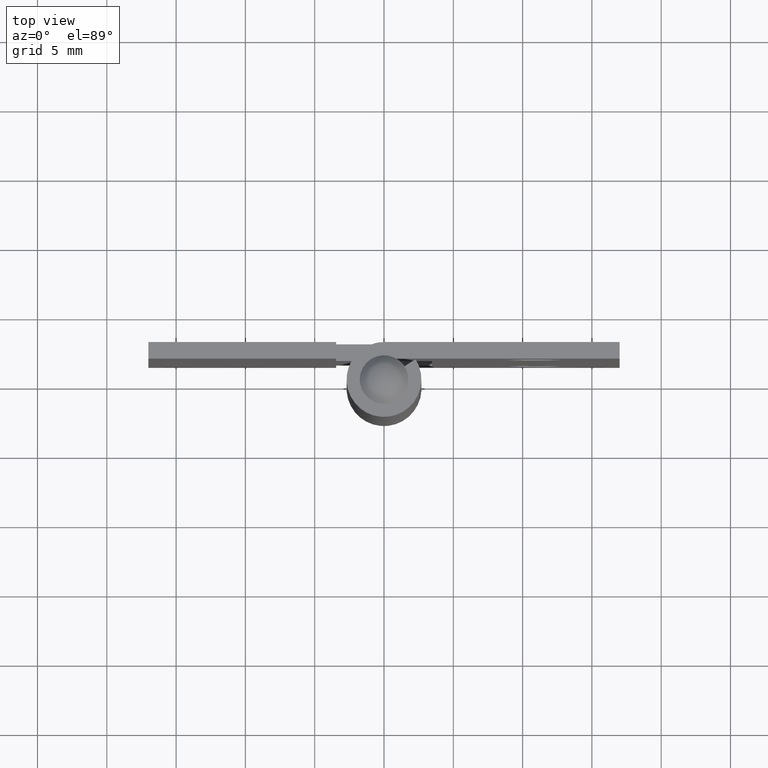
[diagram: clean part render]
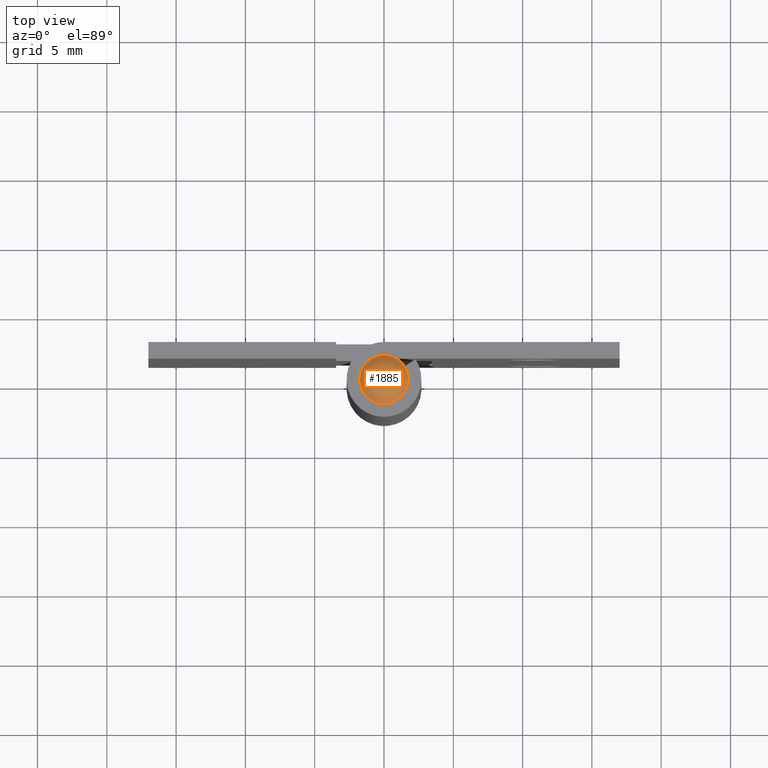
[diagram: same view with one face highlighted and labeled with its STEP entity id]
A machine part, top view. The second image highlights one B-rep face of the part: STEP entity #1885.
In plain terms, the highlighted face is a freeform B-spline surface patch.
Its self-contained STEP definition (entity closure, byte-faithful):
#1802=CARTESIAN_POINT('',(-1.750000035710800,0.0,38.0));
#1803=VERTEX_POINT('',#1802);
#1804=CARTESIAN_POINT('',(1.750000035710800,0.0,38.0));
#1805=VERTEX_POINT('',#1804);
#1806=CARTESIAN_POINT('',(-1.750000035710800,0.0,38.0));
#1807=CARTESIAN_POINT('',(-1.750082475741220,0.171815178228469,38.000000000000028));
#1808=CARTESIAN_POINT('',(-1.712788290754108,0.422309505559623,38.000000000000050));
#1809=CARTESIAN_POINT('',(-1.578112421369717,0.777942897246624,37.999999999999893));
#1810=CARTESIAN_POINT('',(-1.426300229734547,1.031223809570243,38.000000000000092));
#1811=CARTESIAN_POINT('',(-1.198061948900788,1.289344084527976,37.999999999999943));
#1812=CARTESIAN_POINT('',(-0.948233119493173,1.484305844456920,38.000000000000057));
#1813=CARTESIAN_POINT('',(-0.627332735465277,1.645839022843602,37.999999999999922));
#1814=CARTESIAN_POINT('',(-0.266386666666106,1.745738692009917,38.000000000000242));
#1815=CARTESIAN_POINT('',(0.144450607321858,1.760887510521150,37.999999999999467));
#1816=CARTESIAN_POINT('',(0.525684973458513,1.682592288419368,38.000000000000853));
#1817=CARTESIAN_POINT('',(0.861772440750092,1.536064901481687,37.999999999999282));
#1818=CARTESIAN_POINT('',(1.186865123770174,1.310139820349140,38.000000000000639));
#1819=CARTESIAN_POINT('',(1.438937227711617,1.021538621614823,37.999999999998700));
#1820=CARTESIAN_POINT('',(1.606664228687412,0.712171195049799,38.000000000001343));
#1821=CARTESIAN_POINT('',(1.718432553645478,0.393693413381749,37.999999999998032));
#1822=CARTESIAN_POINT('',(1.750048869553605,0.150328682959683,38.000000000001990));
#1823=CARTESIAN_POINT('',(1.750000035710800,0.0,38.0));
#1824=B_SPLINE_CURVE_WITH_KNOTS('',3,(#1806,#1807,#1808,#1809,#1810,#1811,#1812,#1813,#1814,#1815,#1816,#1817,#1818,#1819,#1820,#1821,#1822,#1823),.UNSPECIFIED.,.F.,.U.,(4,1,1,1,1,1,1,1,1,1,1,1,1,1,1,4),(0.000000135648827,0.515409045581392,0.751654484728913,1.138219063917930,1.395933041881841,1.782502500536693,2.083170066988320,2.469739696045223,2.899232678145665,3.307264218152219,3.629418490195570,3.994508398920281,4.488463262651393,4.767644147832532,5.046849554272892,5.497821752290981),.UNSPECIFIED.);
#1825=EDGE_CURVE('',#1803,#1805,#1824,.T.);
#1827=CARTESIAN_POINT('',(1.750000035710800,0.0,38.0));
#1828=CARTESIAN_POINT('',(1.750073424553716,-0.171810581332268,37.999999999999957));
#1829=CARTESIAN_POINT('',(1.702178135451965,-0.493901121462042,38.000000000000142));
#1830=CARTESIAN_POINT('',(1.521280575580980,-0.895333252295206,37.999999999999751));
#1831=CARTESIAN_POINT('',(1.277353963874354,-1.215914901565764,38.000000000000362));
#1832=CARTESIAN_POINT('',(1.024984348367213,-1.430916873866236,38.000000000000007));
#1833=CARTESIAN_POINT('',(0.745023919596228,-1.591772100669577,37.999999999999737));
#1834=CARTESIAN_POINT('',(0.489549852178601,-1.688516080958547,38.000000000000249));
#1835=CARTESIAN_POINT('',(0.144589344818144,-1.757175323483616,37.999999999999801));
#1836=CARTESIAN_POINT('',(-0.202106568057716,-1.752911714153626,38.000000000000647));
#1837=CARTESIAN_POINT('',(-0.593591190256432,-1.659933258627245,37.999999999999119));
#1838=CARTESIAN_POINT('',(-0.932650023030393,-1.499585832766726,38.000000000001670));
#1839=CARTESIAN_POINT('',(-1.213794777536587,-1.274537969612417,37.999999999994138));
#1840=CARTESIAN_POINT('',(-1.438848471743565,-1.013640958666970,38.000000000004107));
#1841=CARTESIAN_POINT('',(-1.591168654155568,-0.752293806117663,37.999999999997947));
#1842=CARTESIAN_POINT('',(-1.716908772789721,-0.400845504421754,38.000000000002181));
#1843=CARTESIAN_POINT('',(-1.750051106587145,-0.157491740666266,37.999999999995957));
#1844=CARTESIAN_POINT('',(-1.750000035710800,0.0,38.0));
#1845=B_SPLINE_CURVE_WITH_KNOTS('',3,(#1827,#1828,#1829,#1830,#1831,#1832,#1833,#1834,#1835,#1836,#1837,#1838,#1839,#1840,#1841,#1842,#1843,#1844),.UNSPECIFIED.,.F.,.U.,(4,1,1,1,1,1,1,1,1,1,1,1,1,1,1,4),(0.000000135649075,0.515409045581563,0.966407619840843,1.310028402049809,1.718071091098426,1.954307587746290,2.276458826969872,2.534162876899189,3.006601194039848,3.307264218152269,3.736800029382064,4.123366988687878,4.381083254629332,4.767644147832531,5.025366408487839,5.497821752290981),.UNSPECIFIED.);
#1846=EDGE_CURVE('',#1805,#1803,#1845,.T.);
#1857=CARTESIAN_POINT('',(-1.425930604574867,-1.425930604574866,37.212500301259020));
#1858=CARTESIAN_POINT('',(-0.914058578710892,-1.828117157421782,37.854166952380950));
#1859=CARTESIAN_POINT('',(0.914058578710888,-1.828117157421782,37.854166952380950));
#1860=CARTESIAN_POINT('',(1.425930604574866,-1.425930604574866,37.212500301259027));
#1861=CARTESIAN_POINT('',(-1.828117157421783,-0.914058578710891,37.854166952380950));
#1862=CARTESIAN_POINT('',(-1.273154261124269,-1.273154261124266,39.000001999999903));
#1863=CARTESIAN_POINT('',(1.273154261124261,-1.273154261124266,39.000001999999903));
#1864=CARTESIAN_POINT('',(1.828117157421780,-0.914058578710891,37.854166952380950));
#1865=CARTESIAN_POINT('',(-1.828117157421783,0.914058578710890,37.854166952380950));
#1866=CARTESIAN_POINT('',(-1.273154261124269,1.273154261124264,39.000001999999903));
#1867=CARTESIAN_POINT('',(1.273154261124261,1.273154261124264,39.000001999999903));
#1868=CARTESIAN_POINT('',(1.828117157421780,0.914058578710890,37.854166952380950));
#1869=CARTESIAN_POINT('',(-1.425930604574867,1.425930604574866,37.212500301259027));
#1870=CARTESIAN_POINT('',(-0.914058578710892,1.828117157421780,37.854166952380950));
#1871=CARTESIAN_POINT('',(0.914058578710888,1.828117157421780,37.854166952380950));
#1872=CARTESIAN_POINT('',(1.425930604574866,1.425930604574866,37.212500301259041));
#1880=(BOUNDED_SURFACE()B_SPLINE_SURFACE(2,2,((#1857,#1861,#1865,#1869),(#1858,#1862,#1866,#1870),(#1859,#1863,#1867,#1871),(#1860,#1864,#1868,#1872)),.UNSPECIFIED.,.F.,.F.,.U.)B_SPLINE_SURFACE_WITH_KNOTS((3,1,3),(3,1,3),(0.0,2.128256662009472,4.256513324018943),(0.0,2.128256662009476,4.256513324018951),.UNSPECIFIED.)GEOMETRIC_REPRESENTATION_ITEM()RATIONAL_B_SPLINE_SURFACE(((1.785717000588327,1.392858500294163,1.392858500294163,1.785717000588327),(1.392858500294163,1.0,1.0,1.392858500294163),(1.392858500294163,1.0,1.0,1.392858500294163),(1.785717000588327,1.392858500294163,1.392858500294163,1.785717000588327)))REPRESENTATION_ITEM('')SURFACE());
#1881=ORIENTED_EDGE('',*,*,#1846,.F.);
#1882=ORIENTED_EDGE('',*,*,#1825,.F.);
#1883=EDGE_LOOP('',(#1881,#1882));
#1884=FACE_OUTER_BOUND('',#1883,.T.);
#1885=ADVANCED_FACE('',(#1884),#1880,.T.);